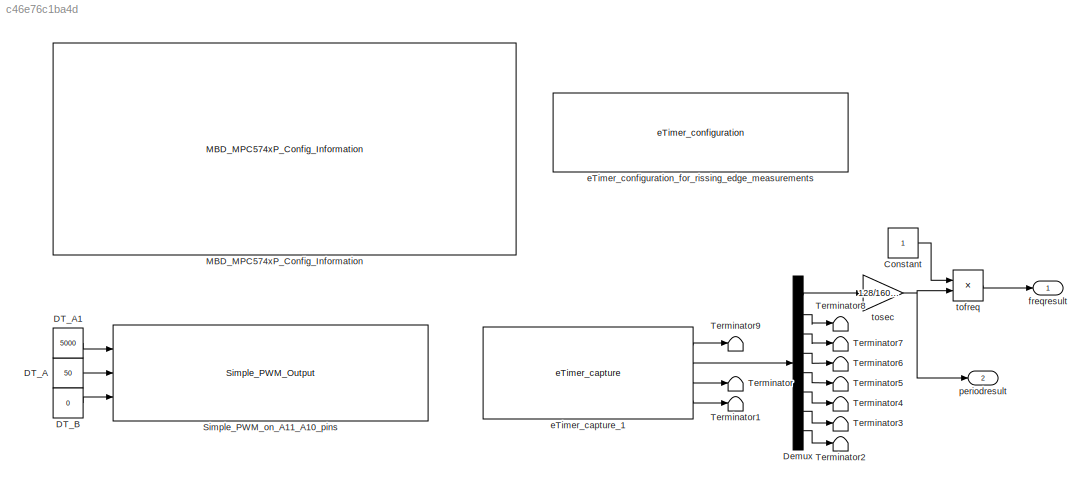
MODEL slx_c46e76c1ba4d
KIND model
CONFIG AbsTol = auto
CONFIG EnableMultiTasking = on
CONFIG FixedStep = 1
CONFIG InitFcn = mbd_pnt_consistency_checks(bdroot(gcs));
CONFIG MaxStep = auto
CONFIG MinStep = auto
CONFIG RelTol = 1e-3
CONFIG SampleTimeConstraint = Unconstrained
CONFIG Solver = FixedStepDiscrete
CONFIG SolverName = FixedStepDiscrete
CONFIG StartTime = 0.0
CONFIG StopTime = 50
BLOCK [Constant] Constant
  OutDataTypeStr = uint16
BLOCK [Constant] DT_A
  OutDataTypeStr = uint32
  Value = 50
BLOCK [Constant] DT_A1
  OutDataTypeStr = uint32
  Value = 5000
BLOCK [Constant] DT_B
  OutDataTypeStr = uint32
  Value = 0
BLOCK [Demux] Demux
  DisplayOption = bar
  Outputs = 8
  Ports = [1, 8]
BLOCK [Reference] MBD_MPC574xP_Config_Information  REF=mbd_pnt_ec_toolbox/MPC574xP/MBD_MPC574xP_Config_Information
  Ports = []
  SourceBlock = mbd_pnt_ec_toolbox/MPC574xP/MBD_MPC574xP_Config_Information
  SourceProductName = Model Based Design Toolbox for MPC574xP
  SourceType = MBDTBX_EC_PNT
BLOCK [Reference] Simple_PWM_on_A11_A10_pins  REF=mbd_pnt_ec_toolbox/MPC574xP/Motor Control Blocks/Simple_PWM_Output
  Ports = [3]
  SourceBlock = mbd_pnt_ec_toolbox/MPC574xP/Motor Control Blocks/Simple_PWM_Output
  SourceProductName = Model Based Design Toolbox for MPC574xP
  SourceType = Simple_PWM_pnt_output
BLOCK [Terminator] Terminator
BLOCK [Terminator] Terminator1
BLOCK [Terminator] Terminator2
BLOCK [Terminator] Terminator3
BLOCK [Terminator] Terminator4
BLOCK [Terminator] Terminator5
BLOCK [Terminator] Terminator6
BLOCK [Terminator] Terminator7
BLOCK [Terminator] Terminator8
BLOCK [Terminator] Terminator9
BLOCK [Reference] eTimer_capture_1  REF=mbd_pnt_ec_toolbox/MPC574xP/Motor Control Blocks/eTimer_capture
  Ports = [0, 4]
  SourceBlock = mbd_pnt_ec_toolbox/MPC574xP/Motor Control Blocks/eTimer_capture
  SourceProductName = Model Based Design Toolbox for MPC574xP
  SourceType = eTimer_pnt_capture
BLOCK [Reference] eTimer_configuration_for_rissing_edge_measurements  REF=mbd_pnt_ec_toolbox/MPC574xP/Motor Control Blocks/eTimer_configuration
  Ports = []
  SourceBlock = mbd_pnt_ec_toolbox/MPC574xP/Motor Control Blocks/eTimer_configuration
  SourceProductName = Model Based Design Toolbox for MPC574xP
  SourceType = eTimer_pnt_config
BLOCK [Outport] freqresult
  IconDisplay = Port number
BLOCK [Outport] periodresult
  IconDisplay = Port number
  Port = 2
BLOCK [Product] tofreq
  InputSameDT = off
  Inputs = //
  OutDataTypeStr = uint16
  Ports = [2, 1]
  RndMeth = Floor
  SaturateOnIntegerOverflow = off
BLOCK [Gain] tosec
  Gain = 128/160e+6
  OutDataTypeStr = single
  ParamDataTypeStr = Inherit: Inherit via internal rule
  SaturateOnIntegerOverflow = off
LINE Constant:1 -> tofreq:1
LINE DT_A1:1 -> Simple_PWM_on_A11_A10_pins:1
LINE DT_A:1 -> Simple_PWM_on_A11_A10_pins:2
LINE DT_B:1 -> Simple_PWM_on_A11_A10_pins:3
LINE Demux:1 -> tosec:1
LINE Demux:2 -> Terminator8:1
LINE Demux:3 -> Terminator7:1
LINE Demux:4 -> Terminator6:1
LINE Demux:5 -> Terminator5:1
LINE Demux:6 -> Terminator4:1
LINE Demux:7 -> Terminator3:1
LINE Demux:8 -> Terminator2:1
LINE eTimer_capture_1:1 -> Terminator9:1
LINE eTimer_capture_1:2 -> Demux:1
LINE eTimer_capture_1:3 -> Terminator:1
LINE eTimer_capture_1:4 -> Terminator1:1
LINE tofreq:1 -> freqresult:1
NET tosec:1 -> periodresult:1, tofreq:2
note: NET lines group one-source signal fan-out (src -> all destinations, sorted); 1:1 wires keep LINE
